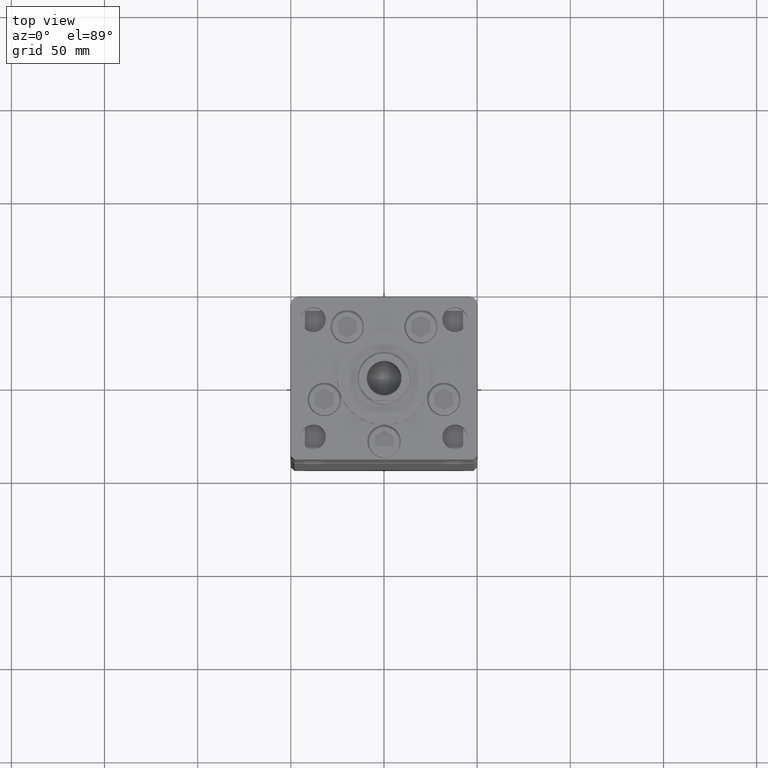
[diagram: clean part render]
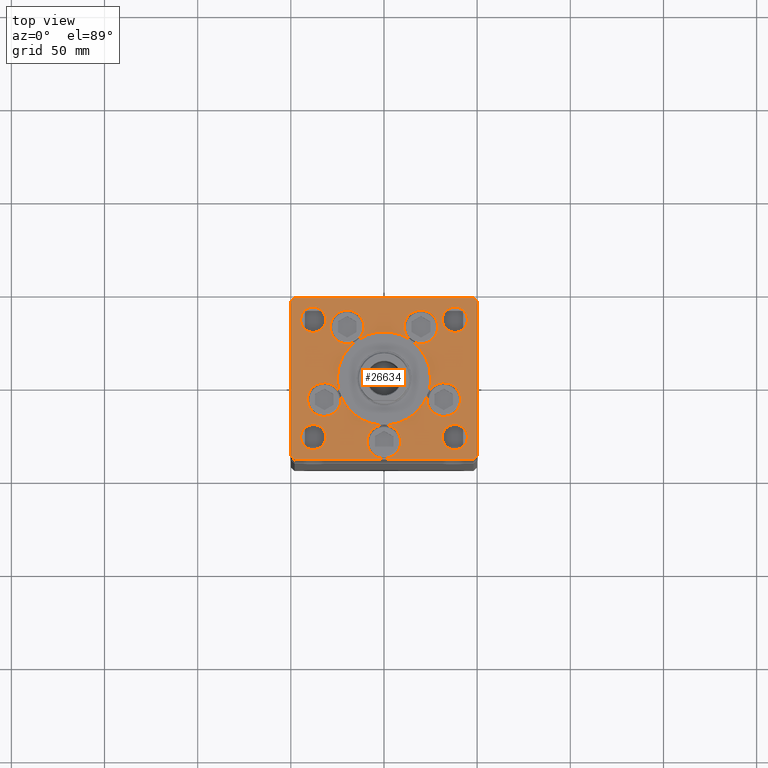
[diagram: same view with one face highlighted and labeled with its STEP entity id]
A machine part, top view. The second image highlights one B-rep face of the part: STEP entity #26634.
In plain terms, the highlighted planar face has unit normal (0, 0, 1).
Its self-contained STEP definition (entity closure, byte-faithful):
#124 = EDGE_CURVE ( 'NONE', #31174, #48594, #44415, .T. ) ;
#188 = EDGE_CURVE ( 'NONE', #24476, #4844, #49559, .T. ) ;
#332 = ORIENTED_EDGE ( 'NONE', *, *, #47056, .F. ) ;
#442 = CARTESIAN_POINT ( 'NONE',  ( -14.57402977045128978, 20.31249999999999289, 0.000000000000000000 ) ) ;
#644 = CIRCLE ( 'NONE', #20394, 6.749999999999999112 ) ;
#771 = AXIS2_PLACEMENT_3D ( 'NONE', #37305, #33279, #30073 ) ;
#967 = CARTESIAN_POINT ( 'NONE',  ( -41.05550741379015989, -11.33333333333332682, 0.000000000000000000 ) ) ;
#1139 = ORIENTED_EDGE ( 'NONE', *, *, #20581, .T. ) ;
#1270 = AXIS2_PLACEMENT_3D ( 'NONE', #40450, #16525, #20034 ) ;
#1351 = AXIS2_PLACEMENT_3D ( 'NONE', #19566, #35942, #52347 ) ;
#1410 = DIRECTION ( 'NONE',  ( 1.000000000000000000, 0.000000000000000000, 0.000000000000000000 ) ) ;
#1511 = CARTESIAN_POINT ( 'NONE',  ( -23.57022603955158502, -8.333333333333332149, 0.000000000000000000 ) ) ;
#1691 = CARTESIAN_POINT ( 'NONE',  ( -32.05550741379015989, -11.33333333333332860, 0.000000000000000000 ) ) ;
#1943 = FACE_BOUND ( 'NONE', #18637, .T. ) ;
#2115 = EDGE_CURVE ( 'NONE', #5517, #7370, #7307, .T. ) ;
#2130 = DIRECTION ( 'NONE',  ( 0.000000000000000000, 0.000000000000000000, 1.000000000000000000 ) ) ;
#2153 = EDGE_CURVE ( 'NONE', #39056, #37176, #35899, .T. ) ;
#2457 = EDGE_CURVE ( 'NONE', #41944, #3690, #7589, .T. ) ;
#2480 = ORIENTED_EDGE ( 'NONE', *, *, #188, .F. ) ;
#2621 = CARTESIAN_POINT ( 'NONE',  ( 48.00000000000000711, -43.49999999999992184, 0.000000000000000000 ) ) ;
#2786 = CARTESIAN_POINT ( 'NONE',  ( 0.000000000000000000, -6.938893903907228378E-15, 0.000000000000000000 ) ) ;
#2952 = CARTESIAN_POINT ( 'NONE',  ( 0.000000000000000000, -6.938893903907228378E-15, 0.000000000000000000 ) ) ;
#3060 = EDGE_CURVE ( 'NONE', #26101, #5517, #20992, .T. ) ;
#3559 = VERTEX_POINT ( 'NONE', #35668 ) ;
#3690 = VERTEX_POINT ( 'NONE', #442 ) ;
#3842 = CIRCLE ( 'NONE', #31321, 8.999999999999998224 ) ;
#4144 = AXIS2_PLACEMENT_3D ( 'NONE', #22924, #27742, #40345 ) ;
#4342 = DIRECTION ( 'NONE',  ( 1.000000000000000000, 1.156482317317871331E-15, 0.000000000000000000 ) ) ;
#4445 = EDGE_CURVE ( 'NONE', #36905, #25581, #20520, .T. ) ;
#4483 = ORIENTED_EDGE ( 'NONE', *, *, #37688, .F. ) ;
#4502 = CIRCLE ( 'NONE', #6236, 25.00000000000000000 ) ;
#4697 = AXIS2_PLACEMENT_3D ( 'NONE', #44858, #8871, #20412 ) ;
#4844 = VERTEX_POINT ( 'NONE', #1511 ) ;
#5517 = VERTEX_POINT ( 'NONE', #38930 ) ;
#5765 = DIRECTION ( 'NONE',  ( 1.000000000000000000, 0.000000000000000000, 0.000000000000000000 ) ) ;
#6122 = AXIS2_PLACEMENT_3D ( 'NONE', #20839, #15762, #36683 ) ;
#6147 = DIRECTION ( 'NONE',  ( 1.000000000000000000, 0.000000000000000000, 0.000000000000000000 ) ) ;
#6236 = AXIS2_PLACEMENT_3D ( 'NONE', #2786, #44651, #44390 ) ;
#6306 = AXIS2_PLACEMENT_3D ( 'NONE', #49083, #41010, #24900 ) ;
#6677 = AXIS2_PLACEMENT_3D ( 'NONE', #1691, #30188, #14580 ) ;
#6774 = ORIENTED_EDGE ( 'NONE', *, *, #14410, .T. ) ;
#6784 = CARTESIAN_POINT ( 'NONE',  ( -38.00000000000000711, -31.50000000000000711, 0.000000000000000000 ) ) ;
#7012 = AXIS2_PLACEMENT_3D ( 'NONE', #10079, #14366, #5765 ) ;
#7072 = DIRECTION ( 'NONE',  ( 0.000000000000000000, 0.000000000000000000, 1.000000000000000000 ) ) ;
#7307 = LINE ( 'NONE', #35784, #12737 ) ;
#7370 = VERTEX_POINT ( 'NONE', #9718 ) ;
#7399 = CIRCLE ( 'NONE', #37427, 9.000000000000001776 ) ;
#7538 = CIRCLE ( 'NONE', #33286, 9.000000000000000000 ) ;
#7589 = CIRCLE ( 'NONE', #28195, 25.00000000000000000 ) ;
#7644 = EDGE_LOOP ( 'NONE', ( #53029, #50698 ) ) ;
#7665 = AXIS2_PLACEMENT_3D ( 'NONE', #29822, #13692, #46200 ) ;
#7866 = DIRECTION ( 'NONE',  ( 0.000000000000000000, 0.000000000000000000, 1.000000000000000000 ) ) ;
#8615 = VERTEX_POINT ( 'NONE', #12295 ) ;
#8871 = DIRECTION ( 'NONE',  ( 0.000000000000000000, 0.000000000000000000, 1.000000000000000000 ) ) ;
#9312 = EDGE_CURVE ( 'NONE', #25581, #29945, #34298, .T. ) ;
#9407 = CARTESIAN_POINT ( 'NONE',  ( -48.00000000000000000, 43.49999999999997158, 0.000000000000000000 ) ) ;
#9718 = CARTESIAN_POINT ( 'NONE',  ( -50.00000000000000000, -41.50000000000004263, 0.000000000000000000 ) ) ;
#9830 = ORIENTED_EDGE ( 'NONE', *, *, #51115, .F. ) ;
#10079 = CARTESIAN_POINT ( 'NONE',  ( 32.05550741379015989, -11.33333333333332860, 0.000000000000000000 ) ) ;
#10422 = VERTEX_POINT ( 'NONE', #32981 ) ;
#10561 = CARTESIAN_POINT ( 'NONE',  ( 28.82068048781374969, 27.62499999999998934, 0.000000000000000000 ) ) ;
#11146 = EDGE_CURVE ( 'NONE', #18697, #47819, #31362, .T. ) ;
#11239 = CIRCLE ( 'NONE', #25823, 6.749999999999999112 ) ;
#11375 = CARTESIAN_POINT ( 'NONE',  ( 19.82068048781374969, 27.62499999999998934, 0.000000000000000000 ) ) ;
#11719 = CARTESIAN_POINT ( 'NONE',  ( 25.00000000000000000, -3.877276906038844941E-15, 0.000000000000000000 ) ) ;
#12295 = CARTESIAN_POINT ( 'NONE',  ( -31.25000000000000000, 31.50000000000000000, 0.000000000000000000 ) ) ;
#12506 = CIRCLE ( 'NONE', #41662, 8.999999999999998224 ) ;
#12623 = VERTEX_POINT ( 'NONE', #10561 ) ;
#12654 = CARTESIAN_POINT ( 'NONE',  ( 50.00000000000000000, -41.49999999999992895, 0.000000000000000000 ) ) ;
#12737 = VECTOR ( 'NONE', #36048, 1000.000000000000000 ) ;
#13251 = CIRCLE ( 'NONE', #14979, 8.999999999999998224 ) ;
#13380 = DIRECTION ( 'NONE',  ( 0.000000000000000000, 0.000000000000000000, 1.000000000000000000 ) ) ;
#13597 = ORIENTED_EDGE ( 'NONE', *, *, #22298, .F. ) ;
#13620 = CIRCLE ( 'NONE', #18767, 25.00000000000000000 ) ;
#13692 = DIRECTION ( 'NONE',  ( 0.000000000000000000, 0.000000000000000000, 1.000000000000000000 ) ) ;
#13883 = AXIS2_PLACEMENT_3D ( 'NONE', #44697, #28592, #32344 ) ;
#13890 = ORIENTED_EDGE ( 'NONE', *, *, #43049, .F. ) ;
#14179 = EDGE_CURVE ( 'NONE', #33465, #50401, #44074, .T. ) ;
#14366 = DIRECTION ( 'NONE',  ( 0.000000000000000000, 0.000000000000000000, 1.000000000000000000 ) ) ;
#14410 = EDGE_CURVE ( 'NONE', #40424, #18697, #41962, .T. ) ;
#14580 = DIRECTION ( 'NONE',  ( 1.000000000000000000, 0.000000000000000000, 0.000000000000000000 ) ) ;
#14630 = DIRECTION ( 'NONE',  ( 0.000000000000000000, 0.000000000000000000, 1.000000000000000000 ) ) ;
#14979 = AXIS2_PLACEMENT_3D ( 'NONE', #11375, #7072, #23468 ) ;
#15271 = DIRECTION ( 'NONE',  ( 0.000000000000000000, 0.000000000000000000, 1.000000000000000000 ) ) ;
#15692 = LINE ( 'NONE', #35836, #35934 ) ;
#15762 = DIRECTION ( 'NONE',  ( 0.000000000000000000, 0.000000000000000000, 1.000000000000000000 ) ) ;
#15822 = ORIENTED_EDGE ( 'NONE', *, *, #24924, .F. ) ;
#16111 = EDGE_CURVE ( 'NONE', #10422, #41944, #13251, .T. ) ;
#16206 = DIRECTION ( 'NONE',  ( -0.7071067811865512365, 0.7071067811865439090, 0.000000000000000000 ) ) ;
#16441 = DIRECTION ( 'NONE',  ( -1.000000000000000000, -2.891205793294678326E-16, 0.000000000000000000 ) ) ;
#16525 = DIRECTION ( 'NONE',  ( 0.000000000000000000, 0.000000000000000000, 1.000000000000000000 ) ) ;
#16591 = DIRECTION ( 'NONE',  ( 1.000000000000000000, 0.000000000000000000, 0.000000000000000000 ) ) ;
#16685 = VECTOR ( 'NONE', #32742, 1000.000000000000000 ) ;
#16860 = CARTESIAN_POINT ( 'NONE',  ( -19.82068048781374969, 27.62499999999998934, 0.000000000000000000 ) ) ;
#17013 = CARTESIAN_POINT ( 'NONE',  ( 38.00000000000000711, -31.50000000000000711, 0.000000000000000000 ) ) ;
#17324 = EDGE_CURVE ( 'NONE', #3690, #29916, #51038, .T. ) ;
#17330 = CARTESIAN_POINT ( 'NONE',  ( 32.05550741379015989, -11.33333333333332860, 0.000000000000000000 ) ) ;
#17414 = CARTESIAN_POINT ( 'NONE',  ( 38.00000000000000000, 31.50000000000000000, 0.000000000000000000 ) ) ;
#17505 = EDGE_CURVE ( 'NONE', #48594, #31174, #25348, .T. ) ;
#17748 = CARTESIAN_POINT ( 'NONE',  ( 0.000000000000000000, -6.938893903907228378E-15, 0.000000000000000000 ) ) ;
#17821 = EDGE_CURVE ( 'NONE', #29945, #36905, #43323, .T. ) ;
#18637 = EDGE_LOOP ( 'NONE', ( #45955, #40100, #27265, #15822, #38520, #44387, #43554, #21790, #13890, #4483, #27103, #31815, #18695, #41023, #2480, #22460, #25618, #13597, #31998, #27315, #29416, #50098 ) ) ;
#18695 = ORIENTED_EDGE ( 'NONE', *, *, #9312, .F. ) ;
#18697 = VERTEX_POINT ( 'NONE', #40135 ) ;
#18699 = CIRCLE ( 'NONE', #48706, 25.00000000000000000 ) ;
#18767 = AXIS2_PLACEMENT_3D ( 'NONE', #17748, #30116, #21240 ) ;
#18917 = CARTESIAN_POINT ( 'NONE',  ( 14.57402977045128623, 20.31249999999998579, 0.000000000000000000 ) ) ;
#18928 = CIRCLE ( 'NONE', #48095, 9.000000000000001776 ) ;
#19112 = DIRECTION ( 'NONE',  ( -0.000000000000000000, -0.000000000000000000, -1.000000000000000000 ) ) ;
#19220 = CARTESIAN_POINT ( 'NONE',  ( 50.00000000000000000, -41.49999999999992895, 0.000000000000000000 ) ) ;
#19384 = VECTOR ( 'NONE', #16441, 1000.000000000000000 ) ;
#19517 = DIRECTION ( 'NONE',  ( -0.000000000000000000, -0.000000000000000000, -1.000000000000000000 ) ) ;
#19566 = CARTESIAN_POINT ( 'NONE',  ( -38.00000000000000000, 31.50000000000000000, 0.000000000000000000 ) ) ;
#19976 = DIRECTION ( 'NONE',  ( 0.000000000000000000, 0.000000000000000000, 1.000000000000000000 ) ) ;
#20034 = DIRECTION ( 'NONE',  ( 1.000000000000000000, 0.000000000000000000, 0.000000000000000000 ) ) ;
#20060 = ORIENTED_EDGE ( 'NONE', *, *, #3060, .T. ) ;
#20067 = EDGE_CURVE ( 'NONE', #7370, #40424, #41614, .T. ) ;
#20298 = DIRECTION ( 'NONE',  ( 0.000000000000000000, 0.000000000000000000, 1.000000000000000000 ) ) ;
#20394 = AXIS2_PLACEMENT_3D ( 'NONE', #25066, #7866, #41180 ) ;
#20412 = DIRECTION ( 'NONE',  ( 1.000000000000000000, 0.000000000000000000, 0.000000000000000000 ) ) ;
#20501 = CARTESIAN_POINT ( 'NONE',  ( 31.25000000000000711, -31.50000000000000711, 0.000000000000000000 ) ) ;
#20506 = AXIS2_PLACEMENT_3D ( 'NONE', #41948, #49198, #25304 ) ;
#20520 = CIRCLE ( 'NONE', #771, 9.000000000000000000 ) ;
#20581 = EDGE_CURVE ( 'NONE', #49404, #26101, #21005, .T. ) ;
#20631 = CARTESIAN_POINT ( 'NONE',  ( 9.000000000000000000, -34.00000000000000000, 0.000000000000000000 ) ) ;
#20754 = CARTESIAN_POINT ( 'NONE',  ( 19.82068048781374969, 27.62499999999998934, 0.000000000000000000 ) ) ;
#20839 = CARTESIAN_POINT ( 'NONE',  ( -19.82068048781374969, 27.62499999999998934, 0.000000000000000000 ) ) ;
#20992 = LINE ( 'NONE', #32548, #21337 ) ;
#21005 = LINE ( 'NONE', #32564, #19384 ) ;
#21060 = EDGE_CURVE ( 'NONE', #48480, #8615, #24519, .T. ) ;
#21147 = AXIS2_PLACEMENT_3D ( 'NONE', #38225, #50858, #1410 ) ;
#21191 = CARTESIAN_POINT ( 'NONE',  ( -50.00000000000000000, -41.50000000000004263, 0.000000000000000000 ) ) ;
#21229 = EDGE_LOOP ( 'NONE', ( #24062, #9830 ) ) ;
#21240 = DIRECTION ( 'NONE',  ( 1.000000000000000000, 0.000000000000000000, 0.000000000000000000 ) ) ;
#21337 = VECTOR ( 'NONE', #44898, 1000.000000000000000 ) ;
#21456 = VECTOR ( 'NONE', #38637, 1000.000000000000114 ) ;
#21631 = CIRCLE ( 'NONE', #13883, 9.000000000000001776 ) ;
#21790 = ORIENTED_EDGE ( 'NONE', *, *, #46493, .F. ) ;
#22026 = CARTESIAN_POINT ( 'NONE',  ( 41.05550741379015989, -11.33333333333332860, 0.000000000000000000 ) ) ;
#22298 = EDGE_CURVE ( 'NONE', #52323, #4844, #52735, .T. ) ;
#22318 = ORIENTED_EDGE ( 'NONE', *, *, #2115, .T. ) ;
#22423 = EDGE_CURVE ( 'NONE', #12623, #10422, #3842, .T. ) ;
#22460 = ORIENTED_EDGE ( 'NONE', *, *, #50823, .F. ) ;
#22632 = FACE_OUTER_BOUND ( 'NONE', #50414, .T. ) ;
#22924 = CARTESIAN_POINT ( 'NONE',  ( 0.000000000000000000, -6.938893903907228378E-15, 0.000000000000000000 ) ) ;
#23193 = DIRECTION ( 'NONE',  ( 0.000000000000000000, 0.000000000000000000, 1.000000000000000000 ) ) ;
#23206 = VERTEX_POINT ( 'NONE', #38395 ) ;
#23468 = DIRECTION ( 'NONE',  ( 1.000000000000000000, 0.000000000000000000, 0.000000000000000000 ) ) ;
#24062 = ORIENTED_EDGE ( 'NONE', *, *, #30497, .F. ) ;
#24136 = EDGE_LOOP ( 'NONE', ( #26266, #332 ) ) ;
#24338 = CARTESIAN_POINT ( 'NONE',  ( -32.05550741379015989, -11.33333333333332860, 0.000000000000000000 ) ) ;
#24365 = CARTESIAN_POINT ( 'NONE',  ( -48.00000000000000711, -43.50000000000002842, 0.000000000000000000 ) ) ;
#24442 = AXIS2_PLACEMENT_3D ( 'NONE', #31802, #19976, #48199 ) ;
#24476 = VERTEX_POINT ( 'NONE', #53055 ) ;
#24519 = CIRCLE ( 'NONE', #1351, 6.749999999999999112 ) ;
#24751 = VERTEX_POINT ( 'NONE', #44666 ) ;
#24900 = DIRECTION ( 'NONE',  ( 1.000000000000000000, 0.000000000000000000, 0.000000000000000000 ) ) ;
#24924 = EDGE_CURVE ( 'NONE', #41944, #12623, #12506, .T. ) ;
#25066 = CARTESIAN_POINT ( 'NONE',  ( -38.00000000000000711, -31.50000000000000711, 0.000000000000000000 ) ) ;
#25304 = DIRECTION ( 'NONE',  ( 1.000000000000000000, 0.000000000000000000, 0.000000000000000000 ) ) ;
#25348 = CIRCLE ( 'NONE', #27053, 6.749999999999999112 ) ;
#25399 = EDGE_CURVE ( 'NONE', #26029, #39056, #7399, .T. ) ;
#25581 = VERTEX_POINT ( 'NONE', #30036 ) ;
#25584 = CARTESIAN_POINT ( 'NONE',  ( 44.75000000000000000, 31.50000000000000000, 0.000000000000000000 ) ) ;
#25618 = ORIENTED_EDGE ( 'NONE', *, *, #27327, .F. ) ;
#25823 = AXIS2_PLACEMENT_3D ( 'NONE', #17414, #13380, #29774 ) ;
#25886 = FACE_BOUND ( 'NONE', #21229, .T. ) ;
#26029 = VERTEX_POINT ( 'NONE', #22026 ) ;
#26101 = VERTEX_POINT ( 'NONE', #9407 ) ;
#26206 = DIRECTION ( 'NONE',  ( 1.000000000000000000, 0.000000000000000000, 0.000000000000000000 ) ) ;
#26266 = ORIENTED_EDGE ( 'NONE', *, *, #14179, .F. ) ;
#26576 = CIRCLE ( 'NONE', #20506, 25.00000000000000000 ) ;
#26634 = ADVANCED_FACE ( 'NONE', ( #1943, #29901, #43051, #25886, #22632, #42265 ), #30960, .T. ) ;
#26923 = CARTESIAN_POINT ( 'NONE',  ( -38.00000000000000000, 31.50000000000000000, 0.000000000000000000 ) ) ;
#27053 = AXIS2_PLACEMENT_3D ( 'NONE', #32650, #19517, #36412 ) ;
#27103 = ORIENTED_EDGE ( 'NONE', *, *, #4445, .F. ) ;
#27141 = ORIENTED_EDGE ( 'NONE', *, *, #34047, .T. ) ;
#27265 = ORIENTED_EDGE ( 'NONE', *, *, #22423, .F. ) ;
#27315 = ORIENTED_EDGE ( 'NONE', *, *, #30684, .F. ) ;
#27327 = EDGE_CURVE ( 'NONE', #4844, #39172, #52063, .T. ) ;
#27742 = DIRECTION ( 'NONE',  ( 0.000000000000000000, 0.000000000000000000, 1.000000000000000000 ) ) ;
#28195 = AXIS2_PLACEMENT_3D ( 'NONE', #2952, #43270, #51869 ) ;
#28207 = CARTESIAN_POINT ( 'NONE',  ( -28.82068048781374969, 27.62499999999998934, 0.000000000000000000 ) ) ;
#28592 = DIRECTION ( 'NONE',  ( 0.000000000000000000, 0.000000000000000000, 1.000000000000000000 ) ) ;
#29038 = CARTESIAN_POINT ( 'NONE',  ( -44.75000000000000000, 31.50000000000000000, 0.000000000000000000 ) ) ;
#29416 = ORIENTED_EDGE ( 'NONE', *, *, #48971, .F. ) ;
#29610 = EDGE_CURVE ( 'NONE', #37176, #41944, #18699, .T. ) ;
#29774 = DIRECTION ( 'NONE',  ( 1.000000000000000000, 0.000000000000000000, 0.000000000000000000 ) ) ;
#29822 = CARTESIAN_POINT ( 'NONE',  ( 0.000000000000000000, -34.00000000000000000, 0.000000000000000000 ) ) ;
#29901 = FACE_BOUND ( 'NONE', #7644, .T. ) ;
#29916 = VERTEX_POINT ( 'NONE', #49912 ) ;
#29945 = VERTEX_POINT ( 'NONE', #31083 ) ;
#30036 = CARTESIAN_POINT ( 'NONE',  ( 0.000000000000000000, -25.00000000000000000, 0.000000000000000000 ) ) ;
#30073 = DIRECTION ( 'NONE',  ( 1.000000000000000000, 0.000000000000000000, 0.000000000000000000 ) ) ;
#30116 = DIRECTION ( 'NONE',  ( 0.000000000000000000, 0.000000000000000000, 1.000000000000000000 ) ) ;
#30188 = DIRECTION ( 'NONE',  ( 0.000000000000000000, 0.000000000000000000, 1.000000000000000000 ) ) ;
#30231 = AXIS2_PLACEMENT_3D ( 'NONE', #6784, #23193, #39579 ) ;
#30497 = EDGE_CURVE ( 'NONE', #24751, #51426, #644, .T. ) ;
#30684 = EDGE_CURVE ( 'NONE', #53004, #3690, #7538, .T. ) ;
#30960 = PLANE ( 'NONE',  #21147 ) ;
#31050 = EDGE_LOOP ( 'NONE', ( #39636, #40603 ) ) ;
#31083 = CARTESIAN_POINT ( 'NONE',  ( -9.000000000000000000, -34.00000000000000000, 0.000000000000000000 ) ) ;
#31174 = VERTEX_POINT ( 'NONE', #20501 ) ;
#31321 = AXIS2_PLACEMENT_3D ( 'NONE', #39087, #14630, #43118 ) ;
#31362 = LINE ( 'NONE', #2621, #21456 ) ;
#31802 = CARTESIAN_POINT ( 'NONE',  ( 0.000000000000000000, -34.00000000000000000, 0.000000000000000000 ) ) ;
#31815 = ORIENTED_EDGE ( 'NONE', *, *, #17821, .F. ) ;
#31998 = ORIENTED_EDGE ( 'NONE', *, *, #52605, .F. ) ;
#32344 = DIRECTION ( 'NONE',  ( 1.000000000000000000, 0.000000000000000000, 0.000000000000000000 ) ) ;
#32548 = CARTESIAN_POINT ( 'NONE',  ( -48.00000000000000000, 43.49999999999997158, 0.000000000000000000 ) ) ;
#32564 = CARTESIAN_POINT ( 'NONE',  ( 47.99999999999999289, 43.50000000000000000, 0.000000000000000000 ) ) ;
#32650 = CARTESIAN_POINT ( 'NONE',  ( 38.00000000000000711, -31.50000000000000711, 0.000000000000000000 ) ) ;
#32742 = DIRECTION ( 'NONE',  ( 0.7071067811865487940, -0.7071067811865463515, 0.000000000000000000 ) ) ;
#32981 = CARTESIAN_POINT ( 'NONE',  ( 10.82068048781375147, 27.62499999999998934, 0.000000000000000000 ) ) ;
#33240 = DIRECTION ( 'NONE',  ( 0.000000000000000000, 0.000000000000000000, 1.000000000000000000 ) ) ;
#33251 = AXIS2_PLACEMENT_3D ( 'NONE', #17013, #33395, #49800 ) ;
#33279 = DIRECTION ( 'NONE',  ( 0.000000000000000000, 0.000000000000000000, 1.000000000000000000 ) ) ;
#33286 = AXIS2_PLACEMENT_3D ( 'NONE', #16860, #33240, #37270 ) ;
#33395 = DIRECTION ( 'NONE',  ( -0.000000000000000000, -0.000000000000000000, -1.000000000000000000 ) ) ;
#33465 = VERTEX_POINT ( 'NONE', #25584 ) ;
#34047 = EDGE_CURVE ( 'NONE', #23206, #49404, #15692, .T. ) ;
#34298 = CIRCLE ( 'NONE', #7665, 9.000000000000000000 ) ;
#35137 = CARTESIAN_POINT ( 'NONE',  ( 23.57022603955158502, -8.333333333333332149, 0.000000000000000000 ) ) ;
#35206 = EDGE_CURVE ( 'NONE', #4844, #25581, #26576, .T. ) ;
#35668 = CARTESIAN_POINT ( 'NONE',  ( 23.05550741379015633, -11.33333333333332682, 0.000000000000000000 ) ) ;
#35784 = CARTESIAN_POINT ( 'NONE',  ( -50.00000000000000711, 41.49999999999999289, 0.000000000000000000 ) ) ;
#35836 = CARTESIAN_POINT ( 'NONE',  ( 50.00000000000000000, 41.50000000000000711, 0.000000000000000000 ) ) ;
#35899 = CIRCLE ( 'NONE', #4144, 25.00000000000000000 ) ;
#35934 = VECTOR ( 'NONE', #16206, 999.9999999999998863 ) ;
#35942 = DIRECTION ( 'NONE',  ( -0.000000000000000000, -0.000000000000000000, -1.000000000000000000 ) ) ;
#36048 = DIRECTION ( 'NONE',  ( 8.360113137237620037E-17, -1.000000000000000000, 0.000000000000000000 ) ) ;
#36085 = CIRCLE ( 'NONE', #42126, 6.749999999999999112 ) ;
#36412 = DIRECTION ( 'NONE',  ( -1.000000000000000000, 0.000000000000000000, 0.000000000000000000 ) ) ;
#36683 = DIRECTION ( 'NONE',  ( 1.000000000000000000, 0.000000000000000000, 0.000000000000000000 ) ) ;
#36905 = VERTEX_POINT ( 'NONE', #20631 ) ;
#36982 = CIRCLE ( 'NONE', #6122, 9.000000000000000000 ) ;
#37176 = VERTEX_POINT ( 'NONE', #11719 ) ;
#37270 = DIRECTION ( 'NONE',  ( 1.000000000000000000, 0.000000000000000000, 0.000000000000000000 ) ) ;
#37305 = CARTESIAN_POINT ( 'NONE',  ( 0.000000000000000000, -34.00000000000000000, 0.000000000000000000 ) ) ;
#37427 = AXIS2_PLACEMENT_3D ( 'NONE', #52088, #15271, #16591 ) ;
#37688 = EDGE_CURVE ( 'NONE', #25581, #39056, #13620, .T. ) ;
#38110 = CARTESIAN_POINT ( 'NONE',  ( 31.25000000000000000, 31.50000000000000000, 0.000000000000000000 ) ) ;
#38225 = CARTESIAN_POINT ( 'NONE',  ( 0.000000000000000000, 0.000000000000000000, 0.000000000000000000 ) ) ;
#38279 = DIRECTION ( 'NONE',  ( 0.000000000000000000, 0.000000000000000000, 1.000000000000000000 ) ) ;
#38389 = EDGE_CURVE ( 'NONE', #47819, #23206, #39637, .T. ) ;
#38395 = CARTESIAN_POINT ( 'NONE',  ( 50.00000000000000000, 41.50000000000000711, 0.000000000000000000 ) ) ;
#38520 = ORIENTED_EDGE ( 'NONE', *, *, #29610, .F. ) ;
#38637 = DIRECTION ( 'NONE',  ( 0.7071067811865474617, 0.7071067811865474617, 0.000000000000000000 ) ) ;
#38923 = VECTOR ( 'NONE', #4342, 1000.000000000000000 ) ;
#38930 = CARTESIAN_POINT ( 'NONE',  ( -50.00000000000000711, 41.49999999999999289, 0.000000000000000000 ) ) ;
#39056 = VERTEX_POINT ( 'NONE', #35137 ) ;
#39087 = CARTESIAN_POINT ( 'NONE',  ( 19.82068048781374969, 27.62499999999998934, 0.000000000000000000 ) ) ;
#39172 = VERTEX_POINT ( 'NONE', #967 ) ;
#39579 = DIRECTION ( 'NONE',  ( 1.000000000000000000, 0.000000000000000000, 0.000000000000000000 ) ) ;
#39636 = ORIENTED_EDGE ( 'NONE', *, *, #17505, .T. ) ;
#39637 = LINE ( 'NONE', #19220, #52238 ) ;
#39745 = CARTESIAN_POINT ( 'NONE',  ( 44.75000000000000711, -31.50000000000000711, 0.000000000000000000 ) ) ;
#40040 = AXIS2_PLACEMENT_3D ( 'NONE', #24338, #20298, #53069 ) ;
#40100 = ORIENTED_EDGE ( 'NONE', *, *, #16111, .F. ) ;
#40135 = CARTESIAN_POINT ( 'NONE',  ( 48.00000000000000711, -43.49999999999992184, 0.000000000000000000 ) ) ;
#40345 = DIRECTION ( 'NONE',  ( 1.000000000000000000, 0.000000000000000000, 0.000000000000000000 ) ) ;
#40424 = VERTEX_POINT ( 'NONE', #24365 ) ;
#40450 = CARTESIAN_POINT ( 'NONE',  ( 0.000000000000000000, -6.938893903907228378E-15, 0.000000000000000000 ) ) ;
#40603 = ORIENTED_EDGE ( 'NONE', *, *, #124, .T. ) ;
#41010 = DIRECTION ( 'NONE',  ( 0.000000000000000000, 0.000000000000000000, 1.000000000000000000 ) ) ;
#41023 = ORIENTED_EDGE ( 'NONE', *, *, #35206, .F. ) ;
#41180 = DIRECTION ( 'NONE',  ( 1.000000000000000000, 0.000000000000000000, 0.000000000000000000 ) ) ;
#41614 = LINE ( 'NONE', #21191, #16685 ) ;
#41662 = AXIS2_PLACEMENT_3D ( 'NONE', #20754, #49497, #41987 ) ;
#41826 = CARTESIAN_POINT ( 'NONE',  ( -44.75000000000000711, -31.50000000000000711, 0.000000000000000000 ) ) ;
#41944 = VERTEX_POINT ( 'NONE', #18917 ) ;
#41948 = CARTESIAN_POINT ( 'NONE',  ( 0.000000000000000000, -6.938893903907228378E-15, 0.000000000000000000 ) ) ;
#41962 = LINE ( 'NONE', #45711, #38923 ) ;
#41987 = DIRECTION ( 'NONE',  ( 1.000000000000000000, 0.000000000000000000, 0.000000000000000000 ) ) ;
#42126 = AXIS2_PLACEMENT_3D ( 'NONE', #26923, #19112, #43296 ) ;
#42265 = FACE_BOUND ( 'NONE', #31050, .T. ) ;
#42269 = CIRCLE ( 'NONE', #30231, 6.749999999999999112 ) ;
#42622 = EDGE_CURVE ( 'NONE', #8615, #48480, #36085, .T. ) ;
#42792 = ORIENTED_EDGE ( 'NONE', *, *, #38389, .T. ) ;
#43049 = EDGE_CURVE ( 'NONE', #39056, #3559, #18928, .T. ) ;
#43051 = FACE_BOUND ( 'NONE', #24136, .T. ) ;
#43118 = DIRECTION ( 'NONE',  ( 1.000000000000000000, 0.000000000000000000, 0.000000000000000000 ) ) ;
#43270 = DIRECTION ( 'NONE',  ( 0.000000000000000000, 0.000000000000000000, 1.000000000000000000 ) ) ;
#43296 = DIRECTION ( 'NONE',  ( -1.000000000000000000, 0.000000000000000000, 0.000000000000000000 ) ) ;
#43323 = CIRCLE ( 'NONE', #24442, 9.000000000000000000 ) ;
#43484 = CARTESIAN_POINT ( 'NONE',  ( -25.00000000000000000, -6.938893903907228378E-15, 0.000000000000000000 ) ) ;
#43554 = ORIENTED_EDGE ( 'NONE', *, *, #25399, .F. ) ;
#44074 = CIRCLE ( 'NONE', #6306, 6.749999999999999112 ) ;
#44387 = ORIENTED_EDGE ( 'NONE', *, *, #2153, .F. ) ;
#44390 = DIRECTION ( 'NONE',  ( 1.000000000000000000, 0.000000000000000000, 0.000000000000000000 ) ) ;
#44415 = CIRCLE ( 'NONE', #33251, 6.749999999999999112 ) ;
#44651 = DIRECTION ( 'NONE',  ( 0.000000000000000000, 0.000000000000000000, 1.000000000000000000 ) ) ;
#44666 = CARTESIAN_POINT ( 'NONE',  ( -31.25000000000000711, -31.50000000000000711, 0.000000000000000000 ) ) ;
#44697 = CARTESIAN_POINT ( 'NONE',  ( -32.05550741379015989, -11.33333333333332860, 0.000000000000000000 ) ) ;
#44858 = CARTESIAN_POINT ( 'NONE',  ( -19.82068048781374969, 27.62499999999998934, 0.000000000000000000 ) ) ;
#44898 = DIRECTION ( 'NONE',  ( -0.7071067811865536790, -0.7071067811865414665, 0.000000000000000000 ) ) ;
#45711 = CARTESIAN_POINT ( 'NONE',  ( -48.00000000000000711, -43.50000000000002842, 0.000000000000000000 ) ) ;
#45955 = ORIENTED_EDGE ( 'NONE', *, *, #2457, .F. ) ;
#46200 = DIRECTION ( 'NONE',  ( 1.000000000000000000, 0.000000000000000000, 0.000000000000000000 ) ) ;
#46493 = EDGE_CURVE ( 'NONE', #3559, #26029, #48211, .T. ) ;
#47056 = EDGE_CURVE ( 'NONE', #50401, #33465, #11239, .T. ) ;
#47819 = VERTEX_POINT ( 'NONE', #12654 ) ;
#48095 = AXIS2_PLACEMENT_3D ( 'NONE', #17330, #38279, #26206 ) ;
#48199 = DIRECTION ( 'NONE',  ( 1.000000000000000000, 0.000000000000000000, 0.000000000000000000 ) ) ;
#48211 = CIRCLE ( 'NONE', #7012, 9.000000000000001776 ) ;
#48480 = VERTEX_POINT ( 'NONE', #29038 ) ;
#48594 = VERTEX_POINT ( 'NONE', #39745 ) ;
#48706 = AXIS2_PLACEMENT_3D ( 'NONE', #51571, #2130, #6147 ) ;
#48971 = EDGE_CURVE ( 'NONE', #29916, #53004, #36982, .T. ) ;
#49083 = CARTESIAN_POINT ( 'NONE',  ( 38.00000000000000000, 31.50000000000000000, 0.000000000000000000 ) ) ;
#49198 = DIRECTION ( 'NONE',  ( 0.000000000000000000, 0.000000000000000000, 1.000000000000000000 ) ) ;
#49404 = VERTEX_POINT ( 'NONE', #49665 ) ;
#49497 = DIRECTION ( 'NONE',  ( 0.000000000000000000, 0.000000000000000000, 1.000000000000000000 ) ) ;
#49559 = CIRCLE ( 'NONE', #6677, 9.000000000000001776 ) ;
#49665 = CARTESIAN_POINT ( 'NONE',  ( 47.99999999999999289, 43.50000000000000000, 0.000000000000000000 ) ) ;
#49800 = DIRECTION ( 'NONE',  ( -1.000000000000000000, 0.000000000000000000, 0.000000000000000000 ) ) ;
#49882 = ORIENTED_EDGE ( 'NONE', *, *, #20067, .T. ) ;
#49912 = CARTESIAN_POINT ( 'NONE',  ( -10.82068048781375147, 27.62499999999998934, 0.000000000000000000 ) ) ;
#50098 = ORIENTED_EDGE ( 'NONE', *, *, #17324, .F. ) ;
#50401 = VERTEX_POINT ( 'NONE', #38110 ) ;
#50412 = ORIENTED_EDGE ( 'NONE', *, *, #11146, .T. ) ;
#50414 = EDGE_LOOP ( 'NONE', ( #49882, #6774, #50412, #42792, #27141, #1139, #20060, #22318 ) ) ;
#50698 = ORIENTED_EDGE ( 'NONE', *, *, #21060, .T. ) ;
#50823 = EDGE_CURVE ( 'NONE', #39172, #24476, #21631, .T. ) ;
#50858 = DIRECTION ( 'NONE',  ( -0.000000000000000000, 0.000000000000000000, 1.000000000000000000 ) ) ;
#51038 = CIRCLE ( 'NONE', #4697, 9.000000000000000000 ) ;
#51115 = EDGE_CURVE ( 'NONE', #51426, #24751, #42269, .T. ) ;
#51426 = VERTEX_POINT ( 'NONE', #41826 ) ;
#51571 = CARTESIAN_POINT ( 'NONE',  ( 0.000000000000000000, -6.938893903907228378E-15, 0.000000000000000000 ) ) ;
#51869 = DIRECTION ( 'NONE',  ( 1.000000000000000000, 0.000000000000000000, 0.000000000000000000 ) ) ;
#52063 = CIRCLE ( 'NONE', #40040, 9.000000000000001776 ) ;
#52088 = CARTESIAN_POINT ( 'NONE',  ( 32.05550741379015989, -11.33333333333332860, 0.000000000000000000 ) ) ;
#52238 = VECTOR ( 'NONE', #52512, 1000.000000000000000 ) ;
#52323 = VERTEX_POINT ( 'NONE', #43484 ) ;
#52347 = DIRECTION ( 'NONE',  ( -1.000000000000000000, 0.000000000000000000, 0.000000000000000000 ) ) ;
#52512 = DIRECTION ( 'NONE',  ( 0.000000000000000000, 1.000000000000000000, 0.000000000000000000 ) ) ;
#52605 = EDGE_CURVE ( 'NONE', #3690, #52323, #4502, .T. ) ;
#52735 = CIRCLE ( 'NONE', #1270, 25.00000000000000000 ) ;
#53004 = VERTEX_POINT ( 'NONE', #28207 ) ;
#53029 = ORIENTED_EDGE ( 'NONE', *, *, #42622, .T. ) ;
#53055 = CARTESIAN_POINT ( 'NONE',  ( -23.05550741379015633, -11.33333333333332860, 0.000000000000000000 ) ) ;
#53069 = DIRECTION ( 'NONE',  ( 1.000000000000000000, 0.000000000000000000, 0.000000000000000000 ) ) ;